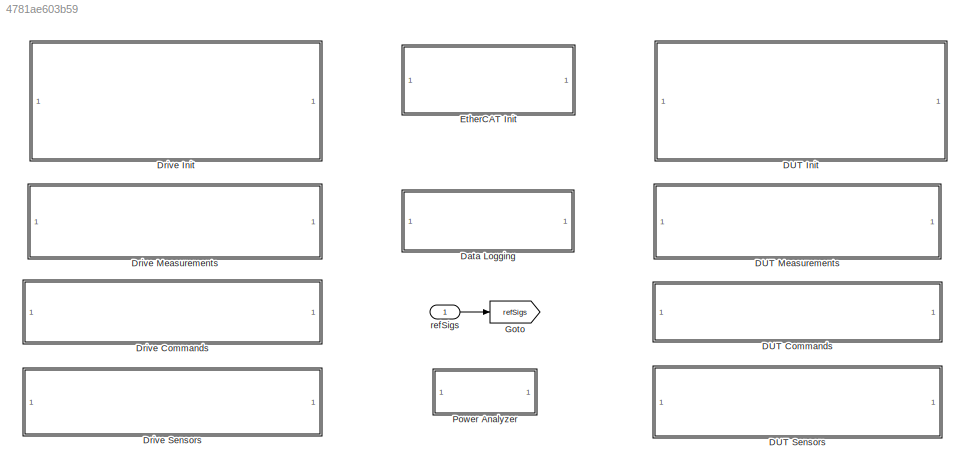
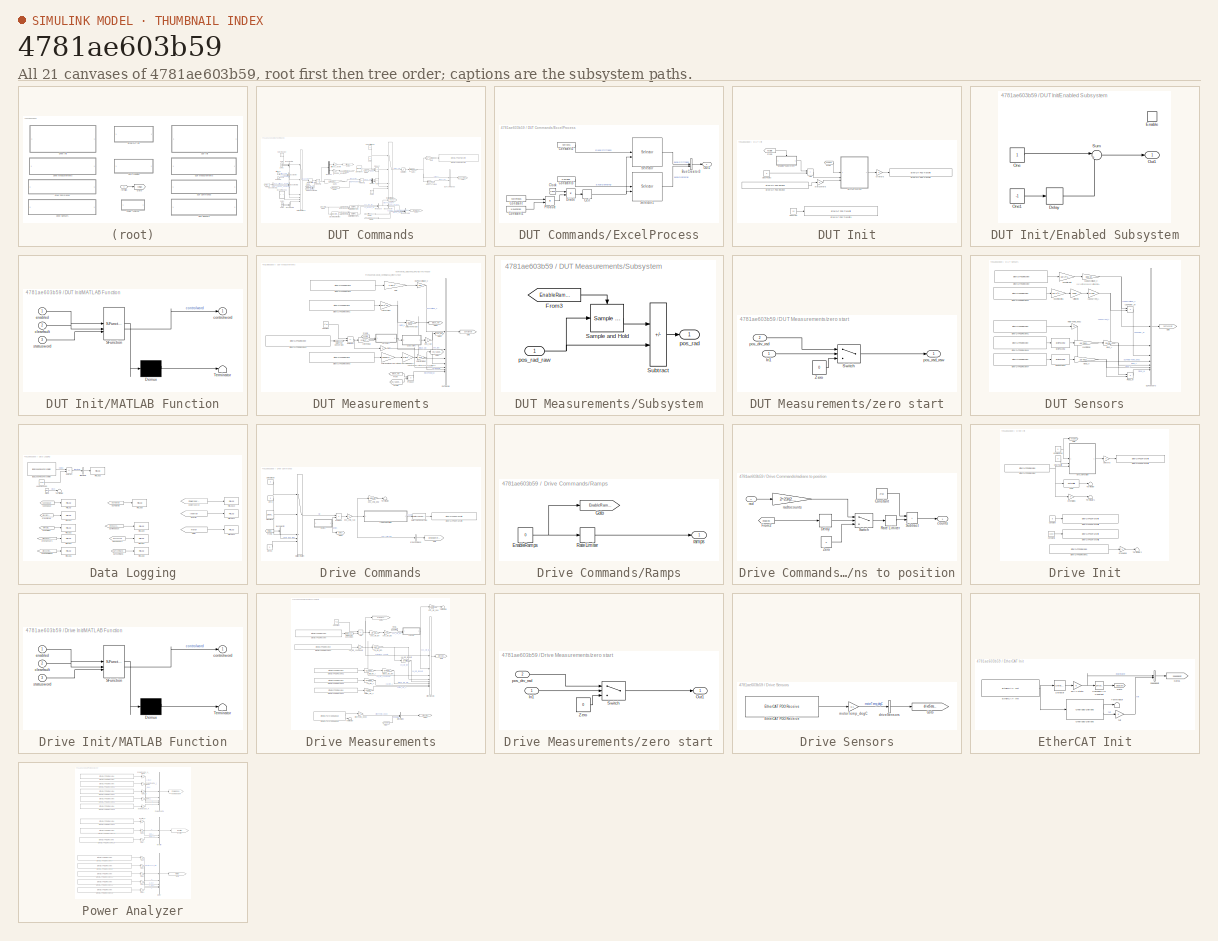
[diagram: thumbnail index - all 21 canvases of the model, root first then tree order]
MODEL slx_4781ae603b59
KIND model
CONFIG AbsTol = auto
CONFIG EnableMultiTasking = off
CONFIG FixedStep = auto
CONFIG MaxStep = auto
CONFIG MinStep = auto
CONFIG RelTol = 1e-3
CONFIG SampleTimeConstraint = Unconstrained
CONFIG SolverName = FixedStepAuto
CONFIG StartTime = 0.0
CONFIG StopTime = inf
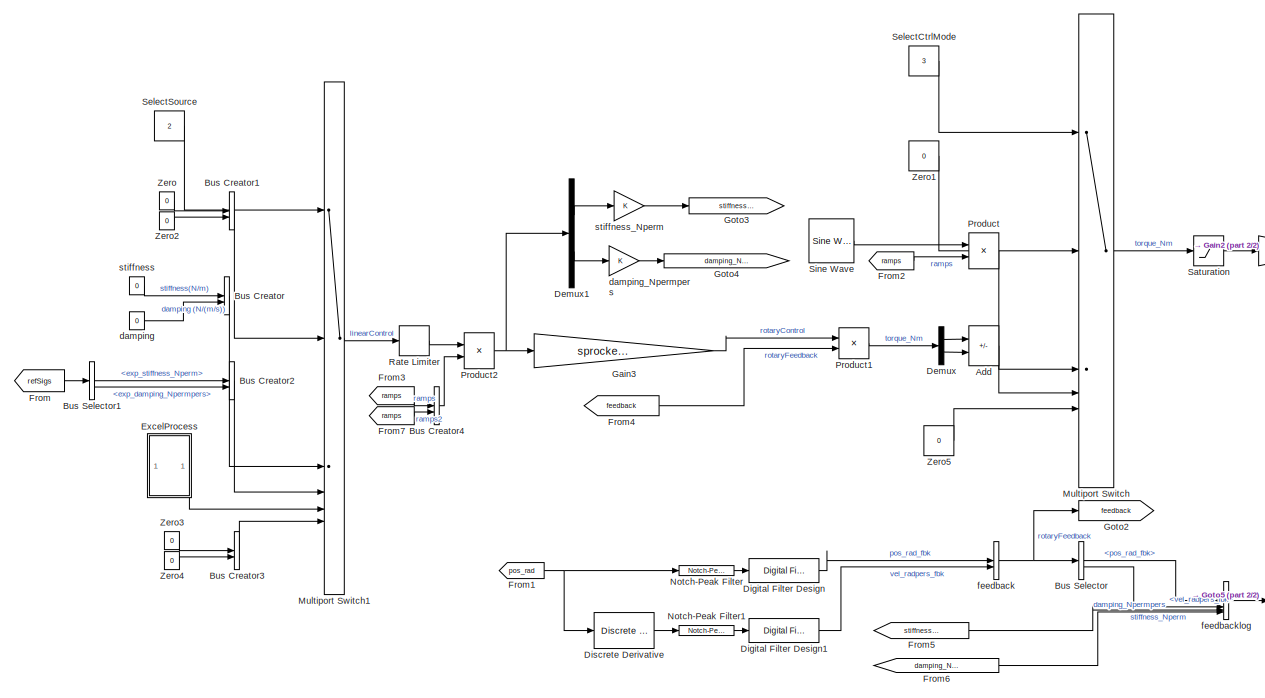
[diagram: DUT Commands - part 1/2, center side, full height]
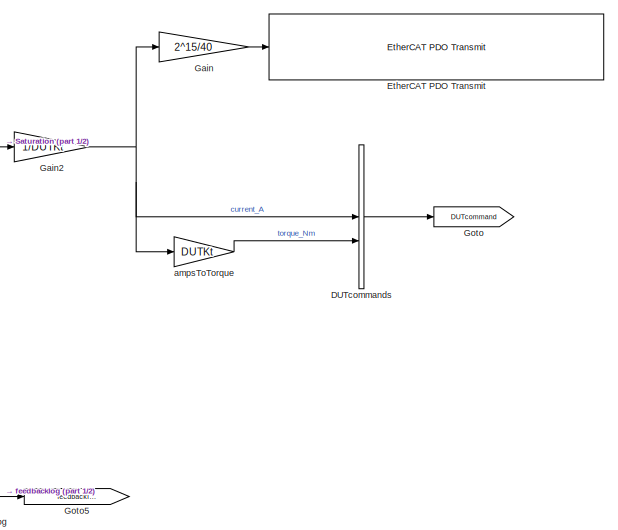
[diagram: DUT Commands - part 2/2, middle right region]
BLOCK [SubSystem] DUT Commands
BLOCK [Sum] DUT Commands/Add
  IconShape = rectangular
  Inputs = --
BLOCK [BusCreator] DUT Commands/Bus Creator
  DisplayOption = bar
  InheritFromInputs = on
  Inputs = 2
BLOCK [BusCreator] DUT Commands/Bus Creator1
  DisplayOption = bar
  InheritFromInputs = on
  Inputs = 2
BLOCK [BusCreator] DUT Commands/Bus Creator2
  DisplayOption = bar
  InheritFromInputs = on
  Inputs = 2
BLOCK [BusCreator] DUT Commands/Bus Creator3
  DisplayOption = bar
  InheritFromInputs = on
  Inputs = 2
BLOCK [BusCreator] DUT Commands/Bus Creator4
  DisplayOption = bar
  InheritFromInputs = on
  Inputs = 2
BLOCK [BusSelector] DUT Commands/Bus Selector
  OutputSignals = pos_rad_fbk,vel_radpers_fbk
BLOCK [BusSelector] DUT Commands/Bus Selector1
  OutputSignals = exp_stiffness_Nperm,exp_damping_Npermpers
BLOCK [BusCreator] DUT Commands/DUTcommands
  DisplayOption = bar
  InheritFromInputs = on
  Inputs = 2
BLOCK [Demux] DUT Commands/Demux
  Outputs = 2
BLOCK [Demux] DUT Commands/Demux1
  Outputs = 2
BLOCK [Reference] DUT Commands/Digital Filter Design  REF=dspfdesign/Digital
Filter Design
  SourceBlock = dspfdesign/Digital\nFilter Design
  SourceType = Digital Filter Design
  UserDataPersistent = on
BLOCK [Reference] DUT Commands/Digital Filter Design1  REF=dspfdesign/Digital
Filter Design
  SourceBlock = dspfdesign/Digital\nFilter Design
  SourceType = Digital Filter Design
  UserDataPersistent = on
BLOCK [Reference] DUT Commands/Discrete Derivative  REF=simulink/Discrete/Discrete Derivative
  SourceBlock = simulink/Discrete/Discrete Derivative
  SourceType = Discrete Derivative
BLOCK [Reference] DUT Commands/EtherCAT PDO Transmit  REF=slrealtimeethercatlib/EtherCAT PDO Transmit
  Priority = 3
  SourceBlock = slrealtimeethercatlib/EtherCAT PDO Transmit
  SourceType = ethercat_pdo_send
BLOCK [SubSystem] DUT Commands/ExcelProcess
BLOCK [BusCreator] DUT Commands/ExcelProcess/Bus Creator3
  DisplayOption = bar
  InheritFromInputs = on
  Inputs = 2
BLOCK [Rounding] DUT Commands/ExcelProcess/Ceil
  Operator = ceil
BLOCK [Clock] DUT Commands/ExcelProcess/Clock
BLOCK [Constant] DUT Commands/ExcelProcess/Constant
  Value = numPeriods
BLOCK [Constant] DUT Commands/ExcelProcess/Constant1
  Value = wavePeriod
BLOCK [Constant] DUT Commands/ExcelProcess/Constant2
  OutDataTypeStr = double
  Value = Stiffness
BLOCK [Constant] DUT Commands/ExcelProcess/Constant3
  OutDataTypeStr = double
  Value = Damping
BLOCK [Product] DUT Commands/ExcelProcess/Divide
  Inputs = */
BLOCK [Outport] DUT Commands/ExcelProcess/Out1
BLOCK [Product] DUT Commands/ExcelProcess/Product
BLOCK [Selector] DUT Commands/ExcelProcess/Selector
  IndexOptions = Index vector (port)
  Indices = [1 3]
  InputPortWidth = ExcelLength
  OutputSizes = 1
BLOCK [Selector] DUT Commands/ExcelProcess/Selector1
  IndexOptions = Index vector (port)
  Indices = [1 3]
  InputPortWidth = ExcelLength
  OutputSizes = 1
BLOCK [From] DUT Commands/From
  GotoTag = refSigs
  TagVisibility = global
BLOCK [From] DUT Commands/From1
  GotoTag = pos_rad
  TagVisibility = global
BLOCK [From] DUT Commands/From2
  GotoTag = ramps
  TagVisibility = global
BLOCK [From] DUT Commands/From3
  GotoTag = ramps
  TagVisibility = global
BLOCK [From] DUT Commands/From4
  GotoTag = feedback
  TagVisibility = global
BLOCK [From] DUT Commands/From5
  GotoTag = stiffness_Nperm
BLOCK [From] DUT Commands/From6
  GotoTag = damping_Npermpers
BLOCK [From] DUT Commands/From7
  GotoTag = ramps
  TagVisibility = global
BLOCK [Gain] DUT Commands/Gain
  Gain = 2^15/40
  OutDataTypeStr = int16
BLOCK [Gain] DUT Commands/Gain2
  Gain = 1/DUTKt
BLOCK [Gain] DUT Commands/Gain3
  Gain = sprocketPitchRadius^2
BLOCK [Goto] DUT Commands/Goto
  GotoTag = DUTcommand
  TagVisibility = global
BLOCK [Goto] DUT Commands/Goto2
  GotoTag = feedback
  TagVisibility = global
BLOCK [Goto] DUT Commands/Goto3
  GotoTag = stiffness_Nperm
BLOCK [Goto] DUT Commands/Goto4
  GotoTag = damping_Npermpers
BLOCK [Goto] DUT Commands/Goto5
  GotoTag = feedbacklog
  TagVisibility = global
BLOCK [MultiPortSwitch] DUT Commands/Multiport Switch
  DataPortForDefault = Additional data port
  InputSameDT = off
  SaturateOnIntegerOverflow = off
BLOCK [MultiPortSwitch] DUT Commands/Multiport Switch1
  DataPortForDefault = Additional data port
  InputSameDT = off
  Inputs = 4
  SaturateOnIntegerOverflow = off
BLOCK [Reference] DUT Commands/Notch-Peak Filter  REF=dspfdesign/Notch-Peak Filter
  SourceBlock = dspfdesign/Notch-Peak Filter
  SourceType = dsp.simulink.NotchPeakFilter
BLOCK [Reference] DUT Commands/Notch-Peak Filter1  REF=dspfdesign/Notch-Peak Filter
  SourceBlock = dspfdesign/Notch-Peak Filter
  SourceType = dsp.simulink.NotchPeakFilter
BLOCK [Product] DUT Commands/Product
BLOCK [Product] DUT Commands/Product1
BLOCK [Product] DUT Commands/Product2
BLOCK [RateLimiter] DUT Commands/Rate Limiter
  FallingSlewLimit = -200
  RisingSlewLimit = 200
  SampleTimeMode = inherited
BLOCK [Saturate] DUT Commands/Saturation
BLOCK [Constant] DUT Commands/SelectCtrlMode
  OutDataTypeStr = double
  Value = 3
BLOCK [Constant] DUT Commands/SelectSource
  OutDataTypeStr = double
  Value = 2
BLOCK [Reference] DUT Commands/Sine Wave  REF=dspsrcs4/Sine Wave
  LibrarySourceBlock = dsphdlsupportsrcs/Sine Wave
  SourceBlock = dspsrcs4/Sine Wave
  SourceType = Sine Wave
BLOCK [Constant] DUT Commands/Zero
  OutDataTypeStr = double
  Value = 0
BLOCK [Constant] DUT Commands/Zero1
  OutDataTypeStr = Inherit: Inherit via back propagation
  Value = 0
BLOCK [Constant] DUT Commands/Zero2
  OutDataTypeStr = double
  Value = 0
BLOCK [Constant] DUT Commands/Zero3
  OutDataTypeStr = double
  Value = 0
BLOCK [Constant] DUT Commands/Zero4
  OutDataTypeStr = double
  Value = 0
BLOCK [Constant] DUT Commands/Zero5
  OutDataTypeStr = Inherit: Inherit via back propagation
  Value = 0
BLOCK [Gain] DUT Commands/ampsToTorque
  Gain = DUTKt
BLOCK [Constant] DUT Commands/damping
  OutDataTypeStr = double
  Value = 0
BLOCK [Gain] DUT Commands/damping_Npermpers
BLOCK [BusCreator] DUT Commands/feedback
  DisplayOption = bar
  InheritFromInputs = on
  Inputs = 2
BLOCK [BusCreator] DUT Commands/feedbacklog
  DisplayOption = bar
  InheritFromInputs = on
  Inputs = 4
BLOCK [Constant] DUT Commands/stiffness
  OutDataTypeStr = double
  Value = 0
BLOCK [Gain] DUT Commands/stiffness_Nperm
BLOCK [SubSystem] DUT Init
BLOCK [Sum] DUT Init/Add
  IconShape = rectangular
BLOCK [Constant] DUT Init/Constant
  Commented = on
  OutDataTypeStr = int8
  Value = 10
BLOCK [SubSystem] DUT Init/Enabled Subsystem
  TreatAsAtomicUnit = on
BLOCK [Delay] DUT Init/Enabled Subsystem/Delay
  DelayLength = 1/Ts
  InputPortMap = u0
BLOCK [EnablePort] DUT Init/Enabled Subsystem/Enable
BLOCK [Constant] DUT Init/Enabled Subsystem/One
  OutDataTypeStr = Inherit: Inherit via back propagation
BLOCK [Constant] DUT Init/Enabled Subsystem/One1
  OutDataTypeStr = Inherit: Inherit via back propagation
  Value = -1
BLOCK [Outport] DUT Init/Enabled Subsystem/Out1
BLOCK [Sum] DUT Init/Enabled Subsystem/Sum
  Inputs = |++
BLOCK [Reference] DUT Init/EtherCAT PDO Receive  REF=slrealtimeethercatlib/EtherCAT PDO Receive
  Priority = 2
  SourceBlock = slrealtimeethercatlib/EtherCAT PDO Receive
  SourceType = ethercat_pdo_receive
BLOCK [Reference] DUT Init/EtherCAT PDO Transmit  REF=slrealtimeethercatlib/EtherCAT PDO Transmit
  Priority = 3
  SourceBlock = slrealtimeethercatlib/EtherCAT PDO Transmit
  SourceType = ethercat_pdo_send
BLOCK [Reference] DUT Init/EtherCAT PDO Transmit1  REF=slrealtimeethercatlib/EtherCAT PDO Transmit
  Commented = on
  Priority = 3
  SourceBlock = slrealtimeethercatlib/EtherCAT PDO Transmit
  SourceType = ethercat_pdo_send
BLOCK [From] DUT Init/From
  GotoTag = enabled
  TagVisibility = global
BLOCK [From] DUT Init/From1
  GotoTag = opState
  TagVisibility = global
BLOCK [SubSystem] DUT Init/MATLAB Function
  ErrorFcn = Stateflow.Translate.translate
  PermitHierarchicalResolution = ExplicitOnly
  SFBlockType = MATLAB Function
  TreatAsAtomicUnit = on
BLOCK [Demux] DUT Init/MATLAB Function/ Demux 
  Outputs = 1
BLOCK [S-Function] DUT Init/MATLAB Function/ SFunction 
  EnableBusSupport = off
  FunctionName = sf_sfun
  PortCounts = [3 2]
  SFcnIsStateOwnerBlock = off
  SFunctionDeploymentMode = off
  Tag = Stateflow S-Function 1
BLOCK [Terminator] DUT Init/MATLAB Function/ Terminator 
BLOCK [Inport] DUT Init/MATLAB Function/clearfault
  Port = 2
BLOCK [Outport] DUT Init/MATLAB Function/controlword
BLOCK [Inport] DUT Init/MATLAB Function/enabled
BLOCK [Inport] DUT Init/MATLAB Function/statusword
  Port = 3
BLOCK [Constant] DUT Init/clearFaults
  OutDataTypeStr = Inherit: Inherit via back propagation
  Value = 0
BLOCK [Gain] DUT Init/ctrlWord
  OutDataTypeStr = uint16
BLOCK [Gain] DUT Init/statusWord
  OutDataTypeStr = double
BLOCK [SubSystem] DUT Measurements
BLOCK [Constant] DUT Measurements/Constant
  Value = 2^25
BLOCK [Gain] DUT Measurements/DUTbusVoltage_V
  Gain = 394
BLOCK [BusCreator] DUT Measurements/DUTsignals
  DisplayOption = bar
  InheritFromInputs = on
  Inputs = 7
BLOCK [DataTypeConversion] DUT Measurements/Data Type Conversion
  OutDataTypeStr = double
  RndMeth = Floor
  SaturateOnIntegerOverflow = off
BLOCK [Reference] DUT Measurements/EtherCAT PDO Receive  REF=slrealtimeethercatlib/EtherCAT PDO Receive
  Priority = 2
  SourceBlock = slrealtimeethercatlib/EtherCAT PDO Receive
  SourceType = ethercat_pdo_receive
BLOCK [Reference] DUT Measurements/EtherCAT PDO Receive1  REF=slrealtimeethercatlib/EtherCAT PDO Receive
  Priority = 2
  SourceBlock = slrealtimeethercatlib/EtherCAT PDO Receive
  SourceType = ethercat_pdo_receive
BLOCK [Reference] DUT Measurements/EtherCAT PDO Receive2  REF=slrealtimeethercatlib/EtherCAT PDO Receive
  Priority = 2
  SourceBlock = slrealtimeethercatlib/EtherCAT PDO Receive
  SourceType = ethercat_pdo_receive
BLOCK [Reference] DUT Measurements/EtherCAT PDO Receive3  REF=slrealtimeethercatlib/EtherCAT PDO Receive
  Priority = 2
  SourceBlock = slrealtimeethercatlib/EtherCAT PDO Receive
  SourceType = ethercat_pdo_receive
BLOCK [From] DUT Measurements/From
  GotoTag = torque_Nm
BLOCK [From] DUT Measurements/From1
  GotoTag = vel_radpers
BLOCK [From] DUT Measurements/From2
  GotoTag = opState
  TagVisibility = global
BLOCK [Gain] DUT Measurements/Gain
  Gain = 1.05/2^14
  OutDataTypeStr = double
BLOCK [Gain] DUT Measurements/Gain1
  OutDataTypeStr = double
BLOCK [Goto] DUT Measurements/Goto
  GotoTag = DUTsignals
  TagVisibility = global
BLOCK [Goto] DUT Measurements/Goto1
  GotoTag = torque_Nm
BLOCK [Goto] DUT Measurements/Goto2
  GotoTag = vel_radpers
BLOCK [Goto] DUT Measurements/Goto3
  GotoTag = pos_rad
  TagVisibility = global
BLOCK [Product] DUT Measurements/Product
BLOCK [SubSystem] DUT Measurements/Subsystem
BLOCK [From] DUT Measurements/Subsystem/From3
  GotoTag = EnableRamps
  TagVisibility = global
BLOCK [Reference] DUT Measurements/Subsystem/Sample and Hold  REF=dspsigops/Sample
and Hold
  SourceBlock = dspsigops/Sample\nand Hold
  SourceType = Sample and Hold
BLOCK [Sum] DUT Measurements/Subsystem/Subtract
  IconShape = rectangular
  Inputs = -+
BLOCK [Outport] DUT Measurements/Subsystem/pos_rad
BLOCK [Inport] DUT Measurements/Subsystem/pos_rad_raw
BLOCK [Sum] DUT Measurements/Subtract
  IconShape = rectangular
  Inputs = -+
BLOCK [Gain] DUT Measurements/ampsToTorque
  Gain = DUTKt
BLOCK [Gain] DUT Measurements/cntsToAmps
  Gain = 40/2^13
  OutDataTypeStr = double
BLOCK [Gain] DUT Measurements/cntsToCntspersec
  Gain = 20000/2^17
  OutDataTypeStr = double
BLOCK [Gain] DUT Measurements/cntsToRad
  Gain = 2*pi/2^26
  OutDataTypeStr = double
BLOCK [Gain] DUT Measurements/cntspersecTORadpers
  Gain = 2*pi/2^26
BLOCK [Gain] DUT Measurements/pos_rad
BLOCK [Gain] DUT Measurements/velocityDivider
  Gain = 512
BLOCK [SubSystem] DUT Measurements/zero start
BLOCK [Inport] DUT Measurements/zero start/In1
BLOCK [Switch] DUT Measurements/zero start/Switch
  Criteria = u2 > Threshold
  InputSameDT = off
  SaturateOnIntegerOverflow = off
BLOCK [Constant] DUT Measurements/zero start/Zero
  OutDataTypeStr = double
  Value = 0
BLOCK [Inport] DUT Measurements/zero start/pos_drv_rad
  Port = 2
BLOCK [Outport] DUT Measurements/zero start/pos_rad_raw
BLOCK [SubSystem] DUT Sensors
BLOCK [Reference] DUT Sensors/Byte Packing  REF=slrealtimeutilitieslib/Byte Packing
  SourceBlock = slrealtimeutilitieslib/Byte Packing
  SourceType = slrealtimebytepacking
BLOCK [Reference] DUT Sensors/Byte Packing1  REF=slrealtimeutilitieslib/Byte Packing
  SourceBlock = slrealtimeutilitieslib/Byte Packing
  SourceType = slrealtimebytepacking
BLOCK [Gain] DUT Sensors/Counts to Volts
  Gain = 10/(2^15-1)
  OutDataTypeStr = double
BLOCK [Gain] DUT Sensors/Counts to Volts1
  Gain = 10/(2^15-1)
  OutDataTypeStr = double
BLOCK [BusCreator] DUT Sensors/DUTsensors
  DisplayOption = bar
  InheritFromInputs = on
  Inputs = 7
BLOCK [Reference] DUT Sensors/EtherCAT PDO Receive  REF=slrealtimeethercatlib/EtherCAT PDO Receive
  Priority = 2
  SourceBlock = slrealtimeethercatlib/EtherCAT PDO Receive
  SourceType = ethercat_pdo_receive
BLOCK [Reference] DUT Sensors/EtherCAT PDO Receive1  REF=slrealtimeethercatlib/EtherCAT PDO Receive
  Priority = 2
  SourceBlock = slrealtimeethercatlib/EtherCAT PDO Receive
  SourceType = ethercat_pdo_receive
BLOCK [Reference] DUT Sensors/EtherCAT PDO Receive2  REF=slrealtimeethercatlib/EtherCAT PDO Receive
  Priority = 2
  SourceBlock = slrealtimeethercatlib/EtherCAT PDO Receive
  SourceType = ethercat_pdo_receive
BLOCK [Reference] DUT Sensors/EtherCAT PDO Receive3  REF=slrealtimeethercatlib/EtherCAT PDO Receive
  Priority = 2
  SourceBlock = slrealtimeethercatlib/EtherCAT PDO Receive
  SourceType = ethercat_pdo_receive
BLOCK [Reference] DUT Sensors/EtherCAT PDO Receive4  REF=slrealtimeethercatlib/EtherCAT PDO Receive
  Priority = 2
  SourceBlock = slrealtimeethercatlib/EtherCAT PDO Receive
  SourceType = ethercat_pdo_receive
BLOCK [Goto] DUT Sensors/Goto
  GotoTag = DUTsensors
  TagVisibility = global
BLOCK [Gain] DUT Sensors/Iload_A
  Gain = 20/50
BLOCK [Product] DUT Sensors/Pload_W
BLOCK [Gain] DUT Sensors/Vload_V
  Gain = 10/7812500
  OutDataTypeStr = double
BLOCK [Gain] DUT Sensors/Volts to mV
  Gain = 1000
  OutDataTypeStr = double
BLOCK [Gain] DUT Sensors/capBusVoltage_V
  Gain = 300/10
BLOCK [Gain] DUT Sensors/capCurrent_A
  Gain = 1/100
  OutDataTypeStr = double
BLOCK [Product] DUT Sensors/capPower_W
BLOCK [Gain] DUT Sensors/counts to mV
  Gain = 40/7812500
  OutDataTypeStr = double
BLOCK [Gain] DUT Sensors/motorTemp_degC
  Gain = 0.1
  OutDataTypeStr = double
BLOCK [SubSystem] Data Logging
BLOCK [Clock] Data Logging/Clock
BLOCK [From] Data Logging/DUTcommand
  GotoTag = DUTcommand
  TagVisibility = global
BLOCK [From] Data Logging/DUTfeedback
  GotoTag = feedbacklog
  TagVisibility = global
BLOCK [From] Data Logging/DUTsensors
  GotoTag = DUTsensors
  TagVisibility = global
BLOCK [From] Data Logging/DUTsignals
  GotoTag = DUTsignals
  TagVisibility = global
BLOCK [Reference] Data Logging/File Log  REF=slrealtimeloglib/File Log
  Commented = on
  SourceBlock = slrealtimeloglib/File Log
  SourceType = slrealtimeloggingblock
BLOCK [Reference] Data Logging/File Log1  REF=slrealtimeloglib/File Log
  SourceBlock = slrealtimeloglib/File Log
  SourceType = slrealtimeloggingblock
BLOCK [Reference] Data Logging/File Log10  REF=slrealtimeloglib/File Log
  SourceBlock = slrealtimeloglib/File Log
  SourceType = slrealtimeloggingblock
BLOCK [Reference] Data Logging/File Log11  REF=slrealtimeloglib/File Log
  SourceBlock = slrealtimeloglib/File Log
  SourceType = slrealtimeloggingblock
BLOCK [Reference] Data Logging/File Log12  REF=slrealtimeloglib/File Log
  SourceBlock = slrealtimeloglib/File Log
  SourceType = slrealtimeloggingblock
BLOCK [Reference] Data Logging/File Log2  REF=slrealtimeloglib/File Log
  SourceBlock = slrealtimeloglib/File Log
  SourceType = slrealtimeloggingblock
BLOCK [Reference] Data Logging/File Log3  REF=slrealtimeloglib/File Log
  SourceBlock = slrealtimeloglib/File Log
  SourceType = slrealtimeloggingblock
BLOCK [Reference] Data Logging/File Log4  REF=slrealtimeloglib/File Log
  SourceBlock = slrealtimeloglib/File Log
  SourceType = slrealtimeloggingblock
BLOCK [Reference] Data Logging/File Log5  REF=slrealtimeloglib/File Log
  SourceBlock = slrealtimeloglib/File Log
  SourceType = slrealtimeloggingblock
BLOCK [Reference] Data Logging/File Log6  REF=slrealtimeloglib/File Log
  SourceBlock = slrealtimeloglib/File Log
  SourceType = slrealtimeloggingblock
BLOCK [Reference] Data Logging/File Log7  REF=slrealtimeloglib/File Log
  SourceBlock = slrealtimeloglib/File Log
  SourceType = slrealtimeloggingblock
BLOCK [Reference] Data Logging/File Log8  REF=slrealtimeloglib/File Log
  SourceBlock = slrealtimeloglib/File Log
  SourceType = slrealtimeloggingblock
BLOCK [Reference] Data Logging/File Log9  REF=slrealtimeloglib/File Log
  SourceBlock = slrealtimeloglib/File Log
  SourceType = slrealtimeloggingblock
BLOCK [Reference] Data Logging/IEEE 1588 Read Parameter  REF=slrealtimeptplib/IEEE 1588
Read Parameter
  Priority = 1
  SourceBlock = slrealtimeptplib/IEEE 1588\nRead Parameter
  SourceType = IEEE_1588_read_param
BLOCK [Constant] Data Logging/Leap Seconds
  Value = 37e9
BLOCK [Sum] Data Logging/Subtract
  IconShape = rectangular
  Inputs = +-
BLOCK [Terminator] Data Logging/Terminator
BLOCK [From] Data Logging/driveCommand
  GotoTag = driveCommand
  TagVisibility = global
BLOCK [From] Data Logging/driveSensors
  GotoTag = driveSensors
  TagVisibility = global
BLOCK [From] Data Logging/driveSignals
  GotoTag = driveSignals
  TagVisibility = global
BLOCK [From] Data Logging/driveStatus
  GotoTag = driveStatus
  TagVisibility = global
BLOCK [From] Data Logging/inverter
  GotoTag = Inverter
  TagVisibility = global
BLOCK [From] Data Logging/motor
  GotoTag = Motor
  TagVisibility = global
BLOCK [From] Data Logging/powersource
  GotoTag = Powersource
  TagVisibility = global
BLOCK [From] Data Logging/speedgoat
  Commented = on
  GotoTag = speedgoat
  TagVisibility = global
BLOCK [BusCreator] Data Logging/timestamp
  DisplayOption = bar
  InheritFromInputs = on
  Inputs = 1
BLOCK [SubSystem] Drive Commands
BLOCK [BusSelector] Drive Commands/Bus Selector
  OutputSignals = exp_pos_rad
BLOCK [DataTypeConversion] Drive Commands/Data Type Conversion
  OutDataTypeStr = int32
  RndMeth = Floor
  SaturateOnIntegerOverflow = off
BLOCK [Reference] Drive Commands/EtherCAT PDO Transmit  REF=slrealtimeethercatlib/EtherCAT PDO Transmit
  Priority = 3
  SourceBlock = slrealtimeethercatlib/EtherCAT PDO Transmit
  SourceType = ethercat_pdo_send
BLOCK [From] Drive Commands/From1
  GotoTag = refSigs
  TagVisibility = global
BLOCK [Goto] Drive Commands/Goto
  GotoTag = driveCommand
  TagVisibility = global
BLOCK [Goto] Drive Commands/Goto1
  GotoTag = ramps
  TagVisibility = global
BLOCK [MultiPortSwitch] Drive Commands/Multiport Switch
  DataPortForDefault = Additional data port
  InputSameDT = off
  SaturateOnIntegerOverflow = off
BLOCK [Product] Drive Commands/Product
BLOCK [SubSystem] Drive Commands/Ramps
BLOCK [Constant] Drive Commands/Ramps/EnableRamps
  OutDataTypeStr = double
  Value = 0
BLOCK [Goto] Drive Commands/Ramps/Goto
  GotoTag = EnableRamps
  TagVisibility = global
BLOCK [RateLimiter] Drive Commands/Ramps/Rate Limiter
  FallingSlewLimit = -1/rampTime
  RisingSlewLimit = 1/rampTime
  SampleTimeMode = inherited
BLOCK [Outport] Drive Commands/Ramps/ramps
BLOCK [Constant] Drive Commands/SelectMode
  OutDataTypeStr = double
  Value = 2
BLOCK [Reference] Drive Commands/Sine Wave  REF=dspsrcs4/Sine Wave
  LibrarySourceBlock = dsphdlsupportsrcs/Sine Wave
  SourceBlock = dspsrcs4/Sine Wave
  SourceType = Sine Wave
BLOCK [Terminator] Drive Commands/Terminator
BLOCK [Constant] Drive Commands/Zero
  OutDataTypeStr = double
  Value = 0
BLOCK [Constant] Drive Commands/Zero1
  OutDataTypeStr = double
  Value = 0
BLOCK [BusCreator] Drive Commands/driveCommand
  DisplayOption = bar
  InheritFromInputs = on
  Inputs = 1
BLOCK [Gain] Drive Commands/pos_cmd_deg
  Gain = 180/pi
BLOCK [Gain] Drive Commands/pos_cmd_rad
BLOCK [SubSystem] Drive Commands/radians to position
BLOCK [Constant] Drive Commands/radians to position/Constant
  Value = 2^22
BLOCK [Delay] Drive Commands/radians to position/Delay
  DelayLength = 1*1000
  InputPortMap = u0
  InputProcessing = Columns as channels (frame based)
BLOCK [From] Drive Commands/radians to position/From2
  GotoTag = enabled
  TagVisibility = global
BLOCK [RateLimiter] Drive Commands/radians to position/Rate Limiter
  FallingSlewLimit = -1e6
  RisingSlewLimit = 1e6
  SampleTimeMode = inherited
BLOCK [Sum] Drive Commands/radians to position/Subtract
  IconShape = rectangular
BLOCK [Switch] Drive Commands/radians to position/Switch
  Criteria = u2 > Threshold
  InputSameDT = off
  SaturateOnIntegerOverflow = off
BLOCK [Constant] Drive Commands/radians to position/Zero
  OutDataTypeStr = double
  Value = 0
BLOCK [Outport] Drive Commands/radians to position/counts
BLOCK [Inport] Drive Commands/radians to position/rad
BLOCK [Gain] Drive Commands/radians to position/radtocounts
  Gain = 2^23/(2*pi)
BLOCK [SubSystem] Drive Init
BLOCK [Constant] Drive Init/Constant
  Commented = on
  OutDataTypeStr = int8
  Value = 8
BLOCK [Constant] Drive Init/Constant1
  OutDataTypeStr = uint16
  Value = 1000
BLOCK [Reference] Drive Init/EtherCAT PDO Receive  REF=slrealtimeethercatlib/EtherCAT PDO Receive
  Priority = 2
  SourceBlock = slrealtimeethercatlib/EtherCAT PDO Receive
  SourceType = ethercat_pdo_receive
BLOCK [Reference] Drive Init/EtherCAT PDO Receive1  REF=slrealtimeethercatlib/EtherCAT PDO Receive
  Priority = 2
  SourceBlock = slrealtimeethercatlib/EtherCAT PDO Receive
  SourceType = ethercat_pdo_receive
BLOCK [Reference] Drive Init/EtherCAT PDO Transmit  REF=slrealtimeethercatlib/EtherCAT PDO Transmit
  Priority = 3
  SourceBlock = slrealtimeethercatlib/EtherCAT PDO Transmit
  SourceType = ethercat_pdo_send
BLOCK [Reference] Drive Init/EtherCAT PDO Transmit1  REF=slrealtimeethercatlib/EtherCAT PDO Transmit
  Commented = on
  Priority = 3
  SourceBlock = slrealtimeethercatlib/EtherCAT PDO Transmit
  SourceType = ethercat_pdo_send
BLOCK [Reference] Drive Init/EtherCAT PDO Transmit2  REF=slrealtimeethercatlib/EtherCAT PDO Transmit
  Priority = 3
  SourceBlock = slrealtimeethercatlib/EtherCAT PDO Transmit
  SourceType = ethercat_pdo_send
BLOCK [Reference] Drive Init/Fault  REF=simulink/Logic and Bit
Operations/Extract Bits
  SourceBlock = simulink/Logic and Bit\nOperations/Extract Bits
  SourceType = Extract Bits
BLOCK [Goto] Drive Init/Goto
  GotoTag = enabled
  TagVisibility = global
BLOCK [SubSystem] Drive Init/MATLAB Function
  ErrorFcn = Stateflow.Translate.translate
  PermitHierarchicalResolution = ExplicitOnly
  SFBlockType = MATLAB Function
  TreatAsAtomicUnit = on
BLOCK [Demux] Drive Init/MATLAB Function/ Demux 
  Outputs = 1
BLOCK [S-Function] Drive Init/MATLAB Function/ SFunction 
  EnableBusSupport = off
  FunctionName = sf_sfun
  PortCounts = [3 2]
  SFcnIsStateOwnerBlock = off
  SFunctionDeploymentMode = off
  Tag = Stateflow S-Function 2
BLOCK [Terminator] Drive Init/MATLAB Function/ Terminator 
BLOCK [Inport] Drive Init/MATLAB Function/clearfault
  Port = 2
BLOCK [Outport] Drive Init/MATLAB Function/controlword
BLOCK [Inport] Drive Init/MATLAB Function/enabled
BLOCK [Inport] Drive Init/MATLAB Function/statusword
  Port = 3
BLOCK [Terminator] Drive Init/Terminator
BLOCK [Terminator] Drive Init/Terminator1
BLOCK [Terminator] Drive Init/Terminator2
BLOCK [Constant] Drive Init/clearFaults
  OutDataTypeStr = Inherit: Inherit via back propagation
  Value = 0
BLOCK [Gain] Drive Init/ctrlWord
  OutDataTypeStr = uint16
BLOCK [Gain] Drive Init/driveMode
  OutDataTypeStr = double
BLOCK [Gain] Drive Init/driveStatus
  OutDataTypeStr = double
BLOCK [Constant] Drive Init/enableDrive
  OutDataTypeStr = double
  Value = 0
BLOCK [SubSystem] Drive Measurements
BLOCK [Sum] Drive Measurements/Add
  IconShape = rectangular
  Inputs = -+
BLOCK [Constant] Drive Measurements/Constant
  Value = 2^22
BLOCK [Gain] Drive Measurements/DClink_drv_V
  Gain = 1/1000
  OutDataTypeStr = double
BLOCK [DataTypeConversion] Drive Measurements/Data Type Conversion
  OutDataTypeStr = double
  RndMeth = Floor
  SaturateOnIntegerOverflow = off
BLOCK [Reference] Drive Measurements/EtherCAT PDO Receive  REF=slrealtimeethercatlib/EtherCAT PDO Receive
  Priority = 2
  SourceBlock = slrealtimeethercatlib/EtherCAT PDO Receive
  SourceType = ethercat_pdo_receive
BLOCK [Reference] Drive Measurements/EtherCAT PDO Receive1  REF=slrealtimeethercatlib/EtherCAT PDO Receive
  Priority = 2
  SourceBlock = slrealtimeethercatlib/EtherCAT PDO Receive
  SourceType = ethercat_pdo_receive
BLOCK [Reference] Drive Measurements/EtherCAT PDO Receive2  REF=slrealtimeethercatlib/EtherCAT PDO Receive
  Priority = 2
  SourceBlock = slrealtimeethercatlib/EtherCAT PDO Receive
  SourceType = ethercat_pdo_receive
BLOCK [Reference] Drive Measurements/EtherCAT PDO Receive3  REF=slrealtimeethercatlib/EtherCAT PDO Receive
  Priority = 2
  SourceBlock = slrealtimeethercatlib/EtherCAT PDO Receive
  SourceType = ethercat_pdo_receive
BLOCK [Reference] Drive Measurements/EtherCAT PDO Receive4  REF=slrealtimeethercatlib/EtherCAT PDO Receive
  Priority = 2
  SourceBlock = slrealtimeethercatlib/EtherCAT PDO Receive
  SourceType = ethercat_pdo_receive
BLOCK [Reference] Drive Measurements/EtherCAT Sync SDO Upload  REF=slrealtimeethercatlib/EtherCAT Sync SDO Upload
  SourceBlock = slrealtimeethercatlib/EtherCAT Sync SDO Upload
  SourceType = ethercatcoeread
BLOCK [From] Drive Measurements/From
  GotoTag = enabled
  TagVisibility = global
BLOCK [From] Drive Measurements/From1
  GotoTag = opState
  TagVisibility = global
BLOCK [Goto] Drive Measurements/Goto
  GotoTag = driveSignals
  TagVisibility = global
BLOCK [Goto] Drive Measurements/Goto1
  GotoTag = driveStatus
  TagVisibility = global
BLOCK [Goto] Drive Measurements/Goto2
  GotoTag = actualPosition_counts
  TagVisibility = global
BLOCK [Terminator] Drive Measurements/Terminator
BLOCK [Terminator] Drive Measurements/Terminator1
BLOCK [Gain] Drive Measurements/cur_drv_A
  Gain = CL/1000
  OutDataTypeStr = double
BLOCK [Gain] Drive Measurements/curtor_drv_A
  Gain = CL/1000
  OutDataTypeStr = double
BLOCK [BusCreator] Drive Measurements/driveSignals
  DisplayOption = bar
  InheritFromInputs = on
  Inputs = 8
BLOCK [BusCreator] Drive Measurements/driveStatus
  DisplayOption = bar
  InheritFromInputs = on
  Inputs = 2
BLOCK [Gain] Drive Measurements/driveTemp_degC
  OutDataTypeStr = double
BLOCK [Gain] Drive Measurements/pos_drv_deg
  Gain = 180/pi
BLOCK [Gain] Drive Measurements/pos_drv_rad
  Gain = 2*pi
BLOCK [Gain] Drive Measurements/pos_drv_rev
  Gain = 1/2^23
BLOCK [Gain] Drive Measurements/torque_drv_Nm
  Gain = driveKt
BLOCK [Gain] Drive Measurements/vel_drv_countspers
  OutDataTypeStr = double
BLOCK [Gain] Drive Measurements/vel_drv_radpers
  Gain = 2*pi/60
BLOCK [Gain] Drive Measurements/vel_drv_rpm
  Gain = 60/2^23
BLOCK [SubSystem] Drive Measurements/zero start
BLOCK [Inport] Drive Measurements/zero start/In1
BLOCK [Outport] Drive Measurements/zero start/Out1
BLOCK [Switch] Drive Measurements/zero start/Switch
  Criteria = u2 > Threshold
  InputSameDT = off
  SaturateOnIntegerOverflow = off
BLOCK [Constant] Drive Measurements/zero start/Zero
  OutDataTypeStr = double
  Value = 0
BLOCK [Inport] Drive Measurements/zero start/pos_drv_rad
  Port = 2
BLOCK [SubSystem] Drive Sensors
BLOCK [Reference] Drive Sensors/EtherCAT PDO Receive  REF=slrealtimeethercatlib/EtherCAT PDO Receive
  Priority = 2
  SourceBlock = slrealtimeethercatlib/EtherCAT PDO Receive
  SourceType = ethercat_pdo_receive
BLOCK [Goto] Drive Sensors/Goto
  GotoTag = driveSensors
  TagVisibility = global
BLOCK [BusCreator] Drive Sensors/driveSensors
  DisplayOption = bar
  InheritFromInputs = on
  Inputs = 1
BLOCK [Gain] Drive Sensors/motorTemp_degC
  Gain = 0.1
  OutDataTypeStr = double
BLOCK [SubSystem] EtherCAT Init
BLOCK [Reference] EtherCAT Init/Compare To Constant  REF=simulink/Logic and Bit
Operations/Compare
To Constant
  SourceBlock = simulink/Logic and Bit\nOperations/Compare\nTo Constant
  SourceType = Compare To Constant
BLOCK [Reference] EtherCAT Init/EtherCAT Init  REF=slrealtimeethercatlib/EtherCAT Init
  Priority = 0
  SourceBlock = slrealtimeethercatlib/EtherCAT Init
  SourceType = ethercatinit
BLOCK [Goto] EtherCAT Init/Goto
  GotoTag = opState
  TagVisibility = global
BLOCK [Goto] EtherCAT Init/Goto1
  Commented = on
  GotoTag = speedgoat
  TagVisibility = global
BLOCK [Reference] EtherCAT Init/Overload Options  REF=slrealtimetgmanagement/Overload Options
  SourceBlock = slrealtimetgmanagement/Overload Options
  SourceType = slrtOverloadOptions
BLOCK [Selector] EtherCAT Init/Selector
  IndexOptions = Index vector (dialog)
  Indices = [2]
  InputPortWidth = 6
  OutputSizes = 1
BLOCK [Terminator] EtherCAT Init/Terminator
BLOCK [Gain] EtherCAT Init/eCATstate
  OutDataTypeStr = double
BLOCK [BusCreator] EtherCAT Init/speedgoat
  Commented = on
  DisplayOption = bar
  InheritFromInputs = on
  Inputs = 2
BLOCK [Gain] EtherCAT Init/tet
  OutDataTypeStr = double
BLOCK [Goto] Goto
  GotoTag = refSigs
  TagVisibility = global
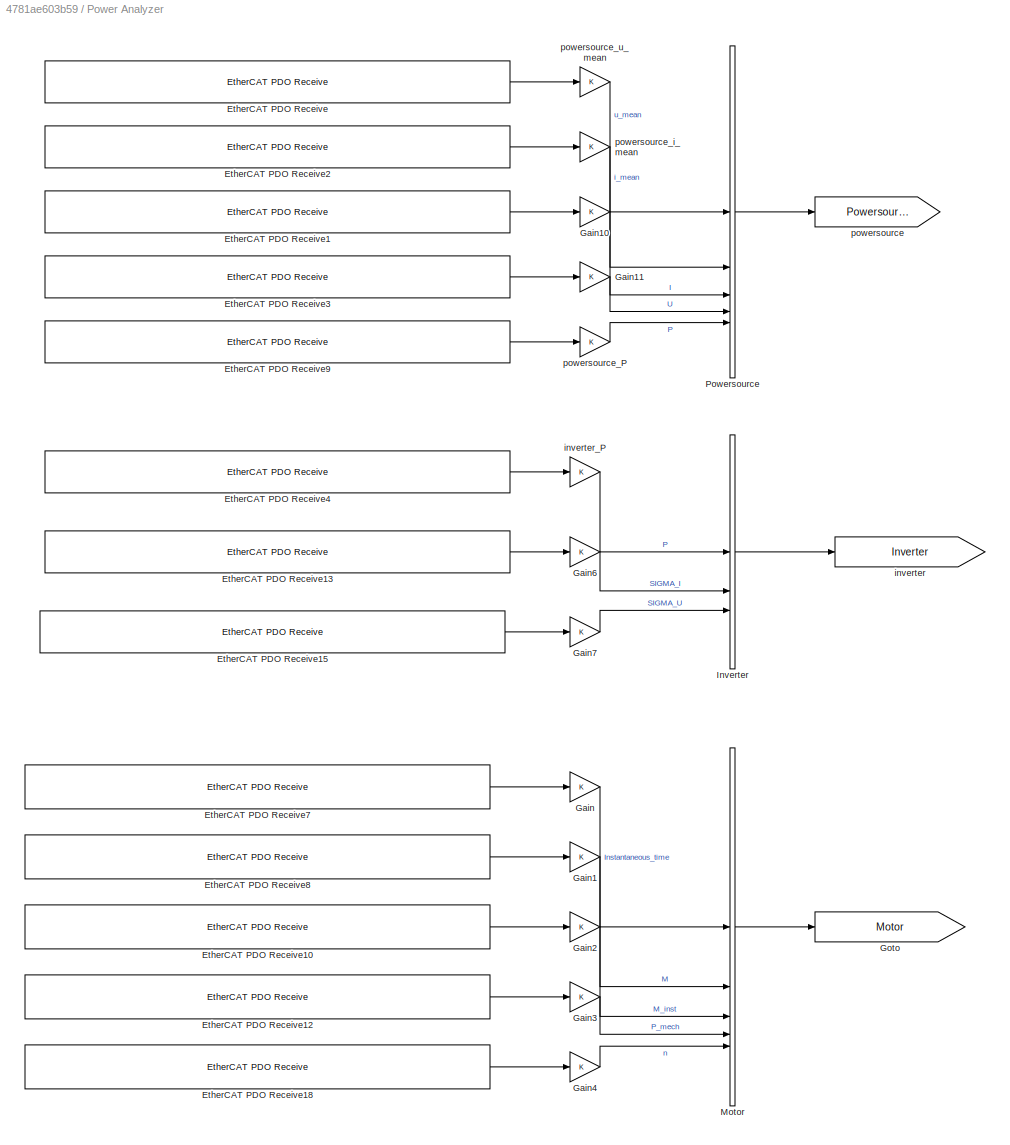
BLOCK [SubSystem] Power Analyzer
BLOCK [Reference] Power Analyzer/EtherCAT PDO Receive  REF=slrealtimeethercatlib/EtherCAT PDO Receive
  Priority = 2
  SourceBlock = slrealtimeethercatlib/EtherCAT PDO Receive
  SourceType = ethercat_pdo_receive
BLOCK [Reference] Power Analyzer/EtherCAT PDO Receive1  REF=slrealtimeethercatlib/EtherCAT PDO Receive
  Priority = 2
  SourceBlock = slrealtimeethercatlib/EtherCAT PDO Receive
  SourceType = ethercat_pdo_receive
BLOCK [Reference] Power Analyzer/EtherCAT PDO Receive10  REF=slrealtimeethercatlib/EtherCAT PDO Receive
  Priority = 2
  SourceBlock = slrealtimeethercatlib/EtherCAT PDO Receive
  SourceType = ethercat_pdo_receive
BLOCK [Reference] Power Analyzer/EtherCAT PDO Receive12  REF=slrealtimeethercatlib/EtherCAT PDO Receive
  Priority = 2
  SourceBlock = slrealtimeethercatlib/EtherCAT PDO Receive
  SourceType = ethercat_pdo_receive
BLOCK [Reference] Power Analyzer/EtherCAT PDO Receive13  REF=slrealtimeethercatlib/EtherCAT PDO Receive
  Priority = 2
  SourceBlock = slrealtimeethercatlib/EtherCAT PDO Receive
  SourceType = ethercat_pdo_receive
BLOCK [Reference] Power Analyzer/EtherCAT PDO Receive15  REF=slrealtimeethercatlib/EtherCAT PDO Receive
  Priority = 2
  SourceBlock = slrealtimeethercatlib/EtherCAT PDO Receive
  SourceType = ethercat_pdo_receive
BLOCK [Reference] Power Analyzer/EtherCAT PDO Receive18  REF=slrealtimeethercatlib/EtherCAT PDO Receive
  Priority = 2
  SourceBlock = slrealtimeethercatlib/EtherCAT PDO Receive
  SourceType = ethercat_pdo_receive
BLOCK [Reference] Power Analyzer/EtherCAT PDO Receive2  REF=slrealtimeethercatlib/EtherCAT PDO Receive
  Priority = 2
  SourceBlock = slrealtimeethercatlib/EtherCAT PDO Receive
  SourceType = ethercat_pdo_receive
BLOCK [Reference] Power Analyzer/EtherCAT PDO Receive3  REF=slrealtimeethercatlib/EtherCAT PDO Receive
  Priority = 2
  SourceBlock = slrealtimeethercatlib/EtherCAT PDO Receive
  SourceType = ethercat_pdo_receive
BLOCK [Reference] Power Analyzer/EtherCAT PDO Receive4  REF=slrealtimeethercatlib/EtherCAT PDO Receive
  Priority = 2
  SourceBlock = slrealtimeethercatlib/EtherCAT PDO Receive
  SourceType = ethercat_pdo_receive
BLOCK [Reference] Power Analyzer/EtherCAT PDO Receive7  REF=slrealtimeethercatlib/EtherCAT PDO Receive
  Priority = 2
  SourceBlock = slrealtimeethercatlib/EtherCAT PDO Receive
  SourceType = ethercat_pdo_receive
BLOCK [Reference] Power Analyzer/EtherCAT PDO Receive8  REF=slrealtimeethercatlib/EtherCAT PDO Receive
  Priority = 2
  SourceBlock = slrealtimeethercatlib/EtherCAT PDO Receive
  SourceType = ethercat_pdo_receive
BLOCK [Reference] Power Analyzer/EtherCAT PDO Receive9  REF=slrealtimeethercatlib/EtherCAT PDO Receive
  Priority = 2
  SourceBlock = slrealtimeethercatlib/EtherCAT PDO Receive
  SourceType = ethercat_pdo_receive
BLOCK [Gain] Power Analyzer/Gain
  OutDataTypeStr = double
BLOCK [Gain] Power Analyzer/Gain1
  OutDataTypeStr = double
BLOCK [Gain] Power Analyzer/Gain10
  OutDataTypeStr = double
BLOCK [Gain] Power Analyzer/Gain11
  OutDataTypeStr = double
BLOCK [Gain] Power Analyzer/Gain2
  OutDataTypeStr = double
BLOCK [Gain] Power Analyzer/Gain3
  OutDataTypeStr = double
BLOCK [Gain] Power Analyzer/Gain4
  OutDataTypeStr = double
BLOCK [Gain] Power Analyzer/Gain6
  OutDataTypeStr = double
BLOCK [Gain] Power Analyzer/Gain7
  OutDataTypeStr = double
BLOCK [Goto] Power Analyzer/Goto
  GotoTag = Motor
  TagVisibility = global
BLOCK [BusCreator] Power Analyzer/Inverter
  DisplayOption = bar
  InheritFromInputs = on
  Inputs = 3
BLOCK [BusCreator] Power Analyzer/Motor
  DisplayOption = bar
  InheritFromInputs = on
  Inputs = 5
BLOCK [BusCreator] Power Analyzer/Powersource
  DisplayOption = bar
  InheritFromInputs = on
  Inputs = 5
BLOCK [Goto] Power Analyzer/inverter
  GotoTag = Inverter
  TagVisibility = global
BLOCK [Gain] Power Analyzer/inverter_P
  OutDataTypeStr = double
BLOCK [Goto] Power Analyzer/powersource
  GotoTag = Powersource
  TagVisibility = global
BLOCK [Gain] Power Analyzer/powersource_P
  OutDataTypeStr = double
BLOCK [Gain] Power Analyzer/powersource_i_mean
  OutDataTypeStr = double
BLOCK [Gain] Power Analyzer/powersource_u_mean
  OutDataTypeStr = double
BLOCK [Inport] refSigs
  OutDataTypeStr = Bus: refSigs
ANNOTATION DUT Measurements: From Apendix A of AMC_CommManual_EtherCAT.pdf
ANNOTATION DUT Measurements: Kov from AMC_Datasheet_DPEANIU-040A400.pdf
ANNOTATION DUT Measurements: Velocity divider set in DriveWare software
ANNOTATION DUT Sensors: current transducer setting mV to A
LINE DUT Commands/Add:1 -> DUT Commands/Multiport Switch:4
LINE DUT Commands/Bus Creator1:1 -> DUT Commands/Multiport Switch1:2
LINE DUT Commands/Bus Creator2:1 -> DUT Commands/Multiport Switch1:4
LINE DUT Commands/Bus Creator3:1 -> DUT Commands/Multiport Switch1:6
LINE DUT Commands/Bus Creator4:1 -> DUT Commands/Product2:2
LINE DUT Commands/Bus Creator:1 -> DUT Commands/Multiport Switch1:3
LINE DUT Commands/Bus Selector1:1 -> DUT Commands/Bus Creator2:1
LINE DUT Commands/Bus Selector1:2 -> DUT Commands/Bus Creator2:2
LINE DUT Commands/Bus Selector:1 -> DUT Commands/feedbacklog:1
LINE DUT Commands/Bus Selector:2 -> DUT Commands/feedbacklog:2
LINE DUT Commands/DUTcommands:1 -> DUT Commands/Goto:1
LINE DUT Commands/Demux1:1 -> DUT Commands/stiffness_Nperm:1
LINE DUT Commands/Demux1:2 -> DUT Commands/damping_Npermpers:1
LINE DUT Commands/Demux:1 -> DUT Commands/Add:1
LINE DUT Commands/Demux:2 -> DUT Commands/Add:2
LINE DUT Commands/Digital Filter Design1:1 -> DUT Commands/feedback:2
LINE DUT Commands/Digital Filter Design:1 -> DUT Commands/feedback:1
LINE DUT Commands/Discrete Derivative:1 -> DUT Commands/Notch-Peak Filter1:1
LINE DUT Commands/ExcelProcess/Bus Creator3:1 -> DUT Commands/ExcelProcess/Out1:1
NET DUT Commands/ExcelProcess/Ceil:1 -> DUT Commands/ExcelProcess/Selector1:2, DUT Commands/ExcelProcess/Selector:2
LINE DUT Commands/ExcelProcess/Clock:1 -> DUT Commands/ExcelProcess/Divide:1
LINE DUT Commands/ExcelProcess/Constant1:1 -> DUT Commands/ExcelProcess/Product:2
LINE DUT Commands/ExcelProcess/Constant2:1 -> DUT Commands/ExcelProcess/Selector:1
LINE DUT Commands/ExcelProcess/Constant3:1 -> DUT Commands/ExcelProcess/Selector1:1
LINE DUT Commands/ExcelProcess/Constant:1 -> DUT Commands/ExcelProcess/Product:1
LINE DUT Commands/ExcelProcess/Divide:1 -> DUT Commands/ExcelProcess/Ceil:1
LINE DUT Commands/ExcelProcess/Product:1 -> DUT Commands/ExcelProcess/Divide:2
LINE DUT Commands/ExcelProcess/Selector1:1 -> DUT Commands/ExcelProcess/Bus Creator3:2
LINE DUT Commands/ExcelProcess/Selector:1 -> DUT Commands/ExcelProcess/Bus Creator3:1
LINE DUT Commands/ExcelProcess:1 -> DUT Commands/Multiport Switch1:5
NET DUT Commands/From1:1 -> DUT Commands/Discrete Derivative:1, DUT Commands/Notch-Peak Filter:1
LINE DUT Commands/From2:1 -> DUT Commands/Product:2
LINE DUT Commands/From3:1 -> DUT Commands/Bus Creator4:1
LINE DUT Commands/From4:1 -> DUT Commands/Product1:2
LINE DUT Commands/From5:1 -> DUT Commands/feedbacklog:3
LINE DUT Commands/From6:1 -> DUT Commands/feedbacklog:4
LINE DUT Commands/From7:1 -> DUT Commands/Bus Creator4:2
LINE DUT Commands/From:1 -> DUT Commands/Bus Selector1:1
NET DUT Commands/Gain2:1 -> DUT Commands/DUTcommands:1, DUT Commands/Gain:1, DUT Commands/ampsToTorque:1
LINE DUT Commands/Gain3:1 -> DUT Commands/Product1:1
LINE DUT Commands/Gain:1 -> DUT Commands/EtherCAT PDO Transmit:1
LINE DUT Commands/Multiport Switch1:1 -> DUT Commands/Rate Limiter:1
LINE DUT Commands/Multiport Switch:1 -> DUT Commands/Saturation:1
LINE DUT Commands/Notch-Peak Filter1:1 -> DUT Commands/Digital Filter Design1:1
LINE DUT Commands/Notch-Peak Filter:1 -> DUT Commands/Digital Filter Design:1
LINE DUT Commands/Product1:1 -> DUT Commands/Demux:1
NET DUT Commands/Product2:1 -> DUT Commands/Demux1:1, DUT Commands/Gain3:1
LINE DUT Commands/Product:1 -> DUT Commands/Multiport Switch:3
LINE DUT Commands/Rate Limiter:1 -> DUT Commands/Product2:1
LINE DUT Commands/Saturation:1 -> DUT Commands/Gain2:1
LINE DUT Commands/SelectCtrlMode:1 -> DUT Commands/Multiport Switch:1
LINE DUT Commands/SelectSource:1 -> DUT Commands/Multiport Switch1:1
LINE DUT Commands/Sine Wave:1 -> DUT Commands/Product:1
LINE DUT Commands/Zero1:1 -> DUT Commands/Multiport Switch:2
LINE DUT Commands/Zero2:1 -> DUT Commands/Bus Creator1:2
LINE DUT Commands/Zero3:1 -> DUT Commands/Bus Creator3:1
LINE DUT Commands/Zero4:1 -> DUT Commands/Bus Creator3:2
LINE DUT Commands/Zero5:1 -> DUT Commands/Multiport Switch:5
LINE DUT Commands/Zero:1 -> DUT Commands/Bus Creator1:1
LINE DUT Commands/ampsToTorque:1 -> DUT Commands/DUTcommands:2
LINE DUT Commands/damping:1 -> DUT Commands/Bus Creator:2
LINE DUT Commands/damping_Npermpers:1 -> DUT Commands/Goto4:1
NET DUT Commands/feedback:1 -> DUT Commands/Bus Selector:1, DUT Commands/Goto2:1
LINE DUT Commands/feedbacklog:1 -> DUT Commands/Goto5:1
LINE DUT Commands/stiffness:1 -> DUT Commands/Bus Creator:1
LINE DUT Commands/stiffness_Nperm:1 -> DUT Commands/Goto3:1
LINE DUT Init/Add:1 -> DUT Init/MATLAB Function:2
LINE DUT Init/Constant:1 -> DUT Init/EtherCAT PDO Transmit1:1
LINE DUT Init/Enabled Subsystem/Delay:1 -> DUT Init/Enabled Subsystem/Sum:2
LINE DUT Init/Enabled Subsystem/One1:1 -> DUT Init/Enabled Subsystem/Delay:1
LINE DUT Init/Enabled Subsystem/One:1 -> DUT Init/Enabled Subsystem/Sum:1
LINE DUT Init/Enabled Subsystem/Sum:1 -> DUT Init/Enabled Subsystem/Out1:1
LINE DUT Init/Enabled Subsystem:1 -> DUT Init/Add:1
LINE DUT Init/EtherCAT PDO Receive:1 -> DUT Init/statusWord:1
LINE DUT Init/From1:1 -> DUT Init/Enabled Subsystem:enable
LINE DUT Init/From:1 -> DUT Init/MATLAB Function:1
LINE DUT Init/MATLAB Function:1 -> DUT Init/ctrlWord:1
LINE DUT Init/clearFaults:1 -> DUT Init/Add:2
LINE DUT Init/ctrlWord:1 -> DUT Init/EtherCAT PDO Transmit:1
LINE DUT Init/statusWord:1 -> DUT Init/MATLAB Function:3
LINE DUT Measurements/Constant:1 -> DUT Measurements/Subtract:1
LINE DUT Measurements/DUTbusVoltage_V:1 -> DUT Measurements/DUTsignals:1
LINE DUT Measurements/DUTsignals:1 -> DUT Measurements/Goto:1
LINE DUT Measurements/Data Type Conversion:1 -> DUT Measurements/Subtract:2
LINE DUT Measurements/EtherCAT PDO Receive1:1 -> DUT Measurements/cntsToAmps:1
LINE DUT Measurements/EtherCAT PDO Receive2:1 -> DUT Measurements/Data Type Conversion:1
LINE DUT Measurements/EtherCAT PDO Receive3:1 -> DUT Measurements/cntsToCntspersec:1
LINE DUT Measurements/EtherCAT PDO Receive:1 -> DUT Measurements/Gain:1
LINE DUT Measurements/From1:1 -> DUT Measurements/Product:2
LINE DUT Measurements/From2:1 -> DUT Measurements/zero start:1
LINE DUT Measurements/From:1 -> DUT Measurements/Product:1
LINE DUT Measurements/Gain1:1 -> DUT Measurements/DUTsignals:5
LINE DUT Measurements/Gain:1 -> DUT Measurements/DUTbusVoltage_V:1
LINE DUT Measurements/Product:1 -> DUT Measurements/DUTsignals:7
LINE DUT Measurements/Subsystem/From3:1 -> DUT Measurements/Subsystem/Sample and Hold:trigger
LINE DUT Measurements/Subsystem/Sample and Hold:1 -> DUT Measurements/Subsystem/Subtract:1
LINE DUT Measurements/Subsystem/Subtract:1 -> DUT Measurements/Subsystem/pos_rad:1
NET DUT Measurements/Subsystem/pos_rad_raw:1 -> DUT Measurements/Subsystem/Sample and Hold:1, DUT Measurements/Subsystem/Subtract:2
LINE DUT Measurements/Subsystem:1 -> DUT Measurements/pos_rad:1
NET DUT Measurements/Subtract:1 -> DUT Measurements/Gain1:1, DUT Measurements/cntsToRad:1
NET DUT Measurements/ampsToTorque:1 -> DUT Measurements/DUTsignals:3, DUT Measurements/Goto1:1
NET DUT Measurements/cntsToAmps:1 -> DUT Measurements/DUTsignals:2, DUT Measurements/ampsToTorque:1
LINE DUT Measurements/cntsToCntspersec:1 -> DUT Measurements/cntspersecTORadpers:1
LINE DUT Measurements/cntsToRad:1 -> DUT Measurements/zero start:2
LINE DUT Measurements/cntspersecTORadpers:1 -> DUT Measurements/velocityDivider:1
NET DUT Measurements/pos_rad:1 -> DUT Measurements/DUTsignals:4, DUT Measurements/Goto3:1
NET DUT Measurements/velocityDivider:1 -> DUT Measurements/DUTsignals:6, DUT Measurements/Goto2:1
LINE DUT Measurements/zero start/In1:1 -> DUT Measurements/zero start/Switch:2
LINE DUT Measurements/zero start/Switch:1 -> DUT Measurements/zero start/pos_rad_raw:1
LINE DUT Measurements/zero start/Zero:1 -> DUT Measurements/zero start/Switch:3
LINE DUT Measurements/zero start/pos_drv_rad:1 -> DUT Measurements/zero start/Switch:1
LINE DUT Measurements/zero start:1 -> DUT Measurements/Subsystem:1
LINE DUT Sensors/Byte Packing1:1 -> DUT Sensors/Vload_V:1
LINE DUT Sensors/Byte Packing:1 -> DUT Sensors/counts to mV:1
LINE DUT Sensors/Counts to Volts1:1 -> DUT Sensors/Volts to mV:1
LINE DUT Sensors/Counts to Volts:1 -> DUT Sensors/capBusVoltage_V:1
LINE DUT Sensors/DUTsensors:1 -> DUT Sensors/Goto:1
LINE DUT Sensors/EtherCAT PDO Receive1:1 -> DUT Sensors/motorTemp_degC:1
LINE DUT Sensors/EtherCAT PDO Receive2:1 -> DUT Sensors/Counts to Volts1:1
LINE DUT Sensors/EtherCAT PDO Receive3:1 -> DUT Sensors/Byte Packing:1
LINE DUT Sensors/EtherCAT PDO Receive4:1 -> DUT Sensors/Byte Packing1:1
LINE DUT Sensors/EtherCAT PDO Receive:1 -> DUT Sensors/Counts to Volts:1
NET DUT Sensors/Iload_A:1 -> DUT Sensors/DUTsensors:5, DUT Sensors/Pload_W:1
LINE DUT Sensors/Pload_W:1 -> DUT Sensors/DUTsensors:7
NET DUT Sensors/Vload_V:1 -> DUT Sensors/DUTsensors:6, DUT Sensors/Pload_W:2
LINE DUT Sensors/Volts to mV:1 -> DUT Sensors/capCurrent_A:1
NET DUT Sensors/capBusVoltage_V:1 -> DUT Sensors/DUTsensors:1, DUT Sensors/capPower_W:1
NET DUT Sensors/capCurrent_A:1 -> DUT Sensors/DUTsensors:2, DUT Sensors/capPower_W:2
LINE DUT Sensors/capPower_W:1 -> DUT Sensors/DUTsensors:3
LINE DUT Sensors/counts to mV:1 -> DUT Sensors/Iload_A:1
LINE DUT Sensors/motorTemp_degC:1 -> DUT Sensors/DUTsensors:4
LINE Data Logging/Clock:1 -> Data Logging/Terminator:1
LINE Data Logging/DUTcommand:1 -> Data Logging/File Log8:1
LINE Data Logging/DUTfeedback:1 -> Data Logging/File Log9:1
LINE Data Logging/DUTsensors:1 -> Data Logging/File Log7:1
LINE Data Logging/DUTsignals:1 -> Data Logging/File Log6:1
LINE Data Logging/IEEE 1588 Read Parameter:1 -> Data Logging/Subtract:1
LINE Data Logging/Leap Seconds:1 -> Data Logging/Subtract:2
LINE Data Logging/Subtract:1 -> Data Logging/timestamp:1
LINE Data Logging/driveCommand:1 -> Data Logging/File Log5:1
LINE Data Logging/driveSensors:1 -> Data Logging/File Log4:1
LINE Data Logging/driveSignals:1 -> Data Logging/File Log1:1
LINE Data Logging/driveStatus:1 -> Data Logging/File Log2:1
LINE Data Logging/inverter:1 -> Data Logging/File Log11:1
LINE Data Logging/motor:1 -> Data Logging/File Log12:1
LINE Data Logging/powersource:1 -> Data Logging/File Log10:1
LINE Data Logging/speedgoat:1 -> Data Logging/File Log:1
LINE Data Logging/timestamp:1 -> Data Logging/File Log3:1
LINE Drive Commands/Bus Selector:1 -> Drive Commands/Multiport Switch:4
LINE Drive Commands/Data Type Conversion:1 -> Drive Commands/EtherCAT PDO Transmit:1
LINE Drive Commands/From1:1 -> Drive Commands/Bus Selector:1
LINE Drive Commands/Multiport Switch:1 -> Drive Commands/Product:1
LINE Drive Commands/Product:1 -> Drive Commands/pos_cmd_rad:1
NET Drive Commands/Ramps/EnableRamps:1 -> Drive Commands/Ramps/Goto:1, Drive Commands/Ramps/Rate Limiter:1
LINE Drive Commands/Ramps/Rate Limiter:1 -> Drive Commands/Ramps/ramps:1
NET Drive Commands/Ramps:1 -> Drive Commands/Goto1:1, Drive Commands/Product:2
LINE Drive Commands/SelectMode:1 -> Drive Commands/Multiport Switch:1
LINE Drive Commands/Sine Wave:1 -> Drive Commands/Multiport Switch:3
LINE Drive Commands/Zero1:1 -> Drive Commands/Multiport Switch:5
LINE Drive Commands/Zero:1 -> Drive Commands/Multiport Switch:2
LINE Drive Commands/driveCommand:1 -> Drive Commands/Goto:1
LINE Drive Commands/pos_cmd_deg:1 -> Drive Commands/Terminator:1
NET Drive Commands/pos_cmd_rad:1 -> Drive Commands/driveCommand:1, Drive Commands/pos_cmd_deg:1, Drive Commands/radians to position:1
LINE Drive Commands/radians to position/Constant:1 -> Drive Commands/radians to position/Subtract:1
LINE Drive Commands/radians to position/Delay:1 -> Drive Commands/radians to position/Switch:2
LINE Drive Commands/radians to position/From2:1 -> Drive Commands/radians to position/Delay:1
LINE Drive Commands/radians to position/Rate Limiter:1 -> Drive Commands/radians to position/Subtract:2
LINE Drive Commands/radians to position/Subtract:1 -> Drive Commands/radians to position/counts:1
LINE Drive Commands/radians to position/Switch:1 -> Drive Commands/radians to position/Rate Limiter:1
LINE Drive Commands/radians to position/Zero:1 -> Drive Commands/radians to position/Switch:3
LINE Drive Commands/radians to position/rad:1 -> Drive Commands/radians to position/radtocounts:1
LINE Drive Commands/radians to position/radtocounts:1 -> Drive Commands/radians to position/Switch:1
LINE Drive Commands/radians to position:1 -> Drive Commands/Data Type Conversion:1
LINE Drive Init/Constant1:1 -> Drive Init/EtherCAT PDO Transmit2:1
LINE Drive Init/Constant:1 -> Drive Init/EtherCAT PDO Transmit1:1
LINE Drive Init/EtherCAT PDO Receive1:1 -> Drive Init/driveMode:1
NET Drive Init/EtherCAT PDO Receive:1 -> Drive Init/Fault:1, Drive Init/MATLAB Function:3, Drive Init/driveStatus:1
LINE Drive Init/Fault:1 -> Drive Init/Terminator:1
LINE Drive Init/MATLAB Function:1 -> Drive Init/ctrlWord:1
LINE Drive Init/clearFaults:1 -> Drive Init/MATLAB Function:2
LINE Drive Init/ctrlWord:1 -> Drive Init/EtherCAT PDO Transmit:1
LINE Drive Init/driveMode:1 -> Drive Init/Terminator2:1
LINE Drive Init/driveStatus:1 -> Drive Init/Terminator1:1
NET Drive Init/enableDrive:1 -> Drive Init/Goto:1, Drive Init/MATLAB Function:1
NET Drive Measurements/Add:1 -> Drive Measurements/Goto2:1, Drive Measurements/driveSignals:1, Drive Measurements/pos_drv_rev:1
LINE Drive Measurements/Constant:1 -> Drive Measurements/Add:1
LINE Drive Measurements/DClink_drv_V:1 -> Drive Measurements/driveSignals:8
LINE Drive Measurements/Data Type Conversion:1 -> Drive Measurements/Add:2
LINE Drive Measurements/EtherCAT PDO Receive1:1 -> Drive Measurements/vel_drv_countspers:1
LINE Drive Measurements/EtherCAT PDO Receive2:1 -> Drive Measurements/curtor_drv_A:1
LINE Drive Measurements/EtherCAT PDO Receive3:1 -> Drive Measurements/cur_drv_A:1
LINE Drive Measurements/EtherCAT PDO Receive4:1 -> Drive Measurements/DClink_drv_V:1
LINE Drive Measurements/EtherCAT PDO Receive:1 -> Drive Measurements/Data Type Conversion:1
LINE Drive Measurements/EtherCAT Sync SDO Upload:1 -> Drive Measurements/driveTemp_degC:1
LINE Drive Measurements/EtherCAT Sync SDO Upload:2 -> Drive Measurements/Terminator:1
LINE Drive Measurements/From1:1 -> Drive Measurements/zero start:1
LINE Drive Measurements/From:1 -> Drive Measurements/driveStatus:2
LINE Drive Measurements/cur_drv_A:1 -> Drive Measurements/driveSignals:7
LINE Drive Measurements/curtor_drv_A:1 -> Drive Measurements/torque_drv_Nm:1
LINE Drive Measurements/driveSignals:1 -> Drive Measurements/Goto:1
LINE Drive Measurements/driveStatus:1 -> Drive Measurements/Goto1:1
LINE Drive Measurements/driveTemp_degC:1 -> Drive Measurements/driveStatus:1
LINE Drive Measurements/pos_drv_deg:1 -> Drive Measurements/Terminator1:1
LINE Drive Measurements/pos_drv_rad:1 -> Drive Measurements/zero start:2
LINE Drive Measurements/pos_drv_rev:1 -> Drive Measurements/pos_drv_rad:1
LINE Drive Measurements/torque_drv_Nm:1 -> Drive Measurements/driveSignals:6
NET Drive Measurements/vel_drv_countspers:1 -> Drive Measurements/driveSignals:3, Drive Measurements/vel_drv_rpm:1
LINE Drive Measurements/vel_drv_radpers:1 -> Drive Measurements/driveSignals:5
NET Drive Measurements/vel_drv_rpm:1 -> Drive Measurements/driveSignals:4, Drive Measurements/vel_drv_radpers:1
LINE Drive Measurements/zero start/In1:1 -> Drive Measurements/zero start/Switch:2
LINE Drive Measurements/zero start/Switch:1 -> Drive Measurements/zero start/Out1:1
LINE Drive Measurements/zero start/Zero:1 -> Drive Measurements/zero start/Switch:3
LINE Drive Measurements/zero start/pos_drv_rad:1 -> Drive Measurements/zero start/Switch:1
NET Drive Measurements/zero start:1 -> Drive Measurements/driveSignals:2, Drive Measurements/pos_drv_deg:1
LINE Drive Sensors/EtherCAT PDO Receive:1 -> Drive Sensors/motorTemp_degC:1
LINE Drive Sensors/driveSensors:1 -> Drive Sensors/Goto:1
LINE Drive Sensors/motorTemp_degC:1 -> Drive Sensors/driveSensors:1
LINE EtherCAT Init/Compare To Constant:1 -> EtherCAT Init/Goto:1
NET EtherCAT Init/EtherCAT Init:1 -> EtherCAT Init/Overload Options:1, EtherCAT Init/Selector:1
LINE EtherCAT Init/Overload Options:1 -> EtherCAT Init/Terminator:1
LINE EtherCAT Init/Overload Options:2 -> EtherCAT Init/tet:1
LINE EtherCAT Init/Selector:1 -> EtherCAT Init/eCATstate:1
NET EtherCAT Init/eCATstate:1 -> EtherCAT Init/Compare To Constant:1, EtherCAT Init/speedgoat:1
LINE EtherCAT Init/speedgoat:1 -> EtherCAT Init/Goto1:1
LINE EtherCAT Init/tet:1 -> EtherCAT Init/speedgoat:2
LINE Power Analyzer/EtherCAT PDO Receive10:1 -> Power Analyzer/Gain2:1
LINE Power Analyzer/EtherCAT PDO Receive12:1 -> Power Analyzer/Gain3:1
LINE Power Analyzer/EtherCAT PDO Receive13:1 -> Power Analyzer/Gain6:1
LINE Power Analyzer/EtherCAT PDO Receive15:1 -> Power Analyzer/Gain7:1
LINE Power Analyzer/EtherCAT PDO Receive18:1 -> Power Analyzer/Gain4:1
LINE Power Analyzer/EtherCAT PDO Receive1:1 -> Power Analyzer/Gain10:1
LINE Power Analyzer/EtherCAT PDO Receive2:1 -> Power Analyzer/powersource_i_mean:1
LINE Power Analyzer/EtherCAT PDO Receive3:1 -> Power Analyzer/Gain11:1
LINE Power Analyzer/EtherCAT PDO Receive4:1 -> Power Analyzer/inverter_P:1
LINE Power Analyzer/EtherCAT PDO Receive7:1 -> Power Analyzer/Gain:1
LINE Power Analyzer/EtherCAT PDO Receive8:1 -> Power Analyzer/Gain1:1
LINE Power Analyzer/EtherCAT PDO Receive9:1 -> Power Analyzer/powersource_P:1
LINE Power Analyzer/EtherCAT PDO Receive:1 -> Power Analyzer/powersource_u_mean:1
LINE Power Analyzer/Gain10:1 -> Power Analyzer/Powersource:3
LINE Power Analyzer/Gain11:1 -> Power Analyzer/Powersource:4
LINE Power Analyzer/Gain1:1 -> Power Analyzer/Motor:2
LINE Power Analyzer/Gain2:1 -> Power Analyzer/Motor:3
LINE Power Analyzer/Gain3:1 -> Power Analyzer/Motor:4
LINE Power Analyzer/Gain4:1 -> Power Analyzer/Motor:5
LINE Power Analyzer/Gain6:1 -> Power Analyzer/Inverter:2
LINE Power Analyzer/Gain7:1 -> Power Analyzer/Inverter:3
LINE Power Analyzer/Gain:1 -> Power Analyzer/Motor:1
LINE Power Analyzer/Inverter:1 -> Power Analyzer/inverter:1
LINE Power Analyzer/Motor:1 -> Power Analyzer/Goto:1
LINE Power Analyzer/Powersource:1 -> Power Analyzer/powersource:1
LINE Power Analyzer/inverter_P:1 -> Power Analyzer/Inverter:1
LINE Power Analyzer/powersource_P:1 -> Power Analyzer/Powersource:5
LINE Power Analyzer/powersource_i_mean:1 -> Power Analyzer/Powersource:2
LINE Power Analyzer/powersource_u_mean:1 -> Power Analyzer/Powersource:1
LINE refSigs:1 -> Goto:1
note: NET lines group one-source signal fan-out (src -> all destinations, sorted); 1:1 wires keep LINE
CHART Drive Init/MATLAB Function states=1 transitions=1
  STATE_LABEL 'eML_blk_kernel()'
  STATE_LABEL 'SCRIPT:\nfunction controlword = fcn(enabled, clearfault, statusword)\n\nbitstatus = bitget(statusword,1:16);\n\nif ~clearfault\n    if enabled\n        if bitstatus(1) == 0 % Ready to switch on not ready\n            controlword = 6; % command ready switch on\n        elseif ~bitstatus(2) % switched not yet on\n            controlword = 7; % command switch on\n        elseif ~bitstatus(3) % operation not yet...<+251ch>'
CHART DUT Init/MATLAB Function states=1 transitions=1
  STATE_LABEL 'eML_blk_kernel()'
  STATE_LABEL 'SCRIPT:\nfunction controlword = fcn(enabled, clearfault, statusword)\n\nbitstatus = bitget(statusword,1:16);\n\nif ~clearfault\n    if enabled\n        if bitstatus(1) == 0 % Ready to switch on not ready\n            controlword = 6; % command ready switch on\n        elseif ~bitstatus(2) % switched not yet on\n            controlword = 7; % command switch on\n        elseif ~bitstatus(3) % operation not yet...<+251ch>'
CHART  states=0 transitions=0
CHART  states=0 transitions=0
